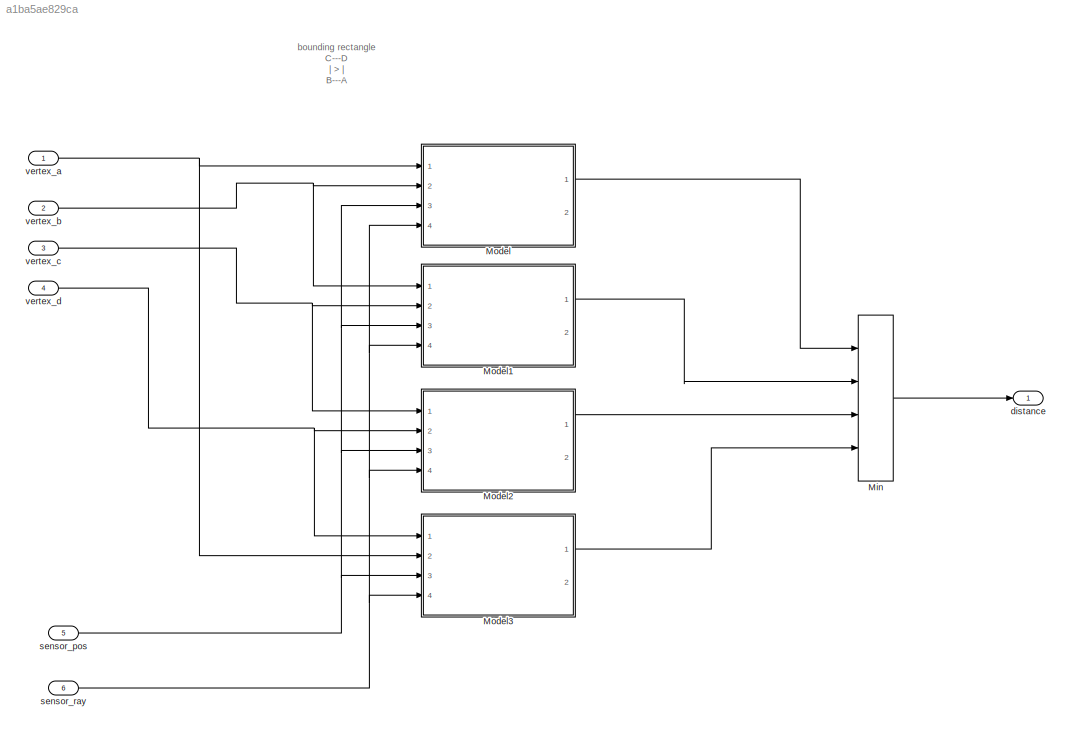
MODEL slx_a1ba5ae829ca
KIND model
CONFIG AbsTol = auto
CONFIG EnableMultiTasking = off
CONFIG FixedStep = auto
CONFIG MaxStep = auto
CONFIG MinStep = auto
CONFIG RelTol = 1e-3
CONFIG SampleTimeConstraint = Unconstrained
CONFIG Solver = VariableStepAuto
CONFIG SolverName = VariableStepAuto
CONFIG StartTime = 0.0
CONFIG StopTime = 10.0
BLOCK [MinMax] Min
  InputSameDT = off
  Inputs = 4
  Ports = [4, 1]
  SaturateOnIntegerOverflow = off
  ZeroCross = off
BLOCK [ModelReference] Model
  ModelNameDialog = calculate_intersection.slx
  ModelReferenceVersion = 1.11
  Ports = [4, 2]
BLOCK [ModelReference] Model1
  ModelNameDialog = calculate_intersection.slx
  ModelReferenceVersion = 1.11
  Ports = [4, 2]
BLOCK [ModelReference] Model2
  ModelNameDialog = calculate_intersection.slx
  ModelReferenceVersion = 1.11
  Ports = [4, 2]
BLOCK [ModelReference] Model3
  ModelNameDialog = calculate_intersection.slx
  ModelReferenceVersion = 1.11
  Ports = [4, 2]
BLOCK [Outport] distance
  IconDisplay = Port number
BLOCK [Inport] sensor_pos
  IconDisplay = Port number
  Port = 5
BLOCK [Inport] sensor_ray 
  IconDisplay = Port number
  Port = 6
BLOCK [Inport] vertex_a 
  IconDisplay = Port number
BLOCK [Inport] vertex_b
  IconDisplay = Port number
  Port = 2
BLOCK [Inport] vertex_c
  IconDisplay = Port number
  Port = 3
BLOCK [Inport] vertex_d
  IconDisplay = Port number
  Port = 4
ANNOTATION (root): bounding rectangle C---D | > | B---A
LINE Min:1 -> distance:1
LINE Model1:1 -> Min:2
LINE Model2:1 -> Min:3
LINE Model3:1 -> Min:4
LINE Model:1 -> Min:1
NET sensor_pos:1 -> Model1:3, Model2:3, Model3:3, Model:3
NET sensor_ray :1 -> Model1:4, Model2:4, Model3:4, Model:4
NET vertex_a :1 -> Model3:2, Model:1
NET vertex_b:1 -> Model1:1, Model:2
NET vertex_c:1 -> Model1:2, Model2:1
NET vertex_d:1 -> Model2:2, Model3:1
note: NET lines group one-source signal fan-out (src -> all destinations, sorted); 1:1 wires keep LINE
